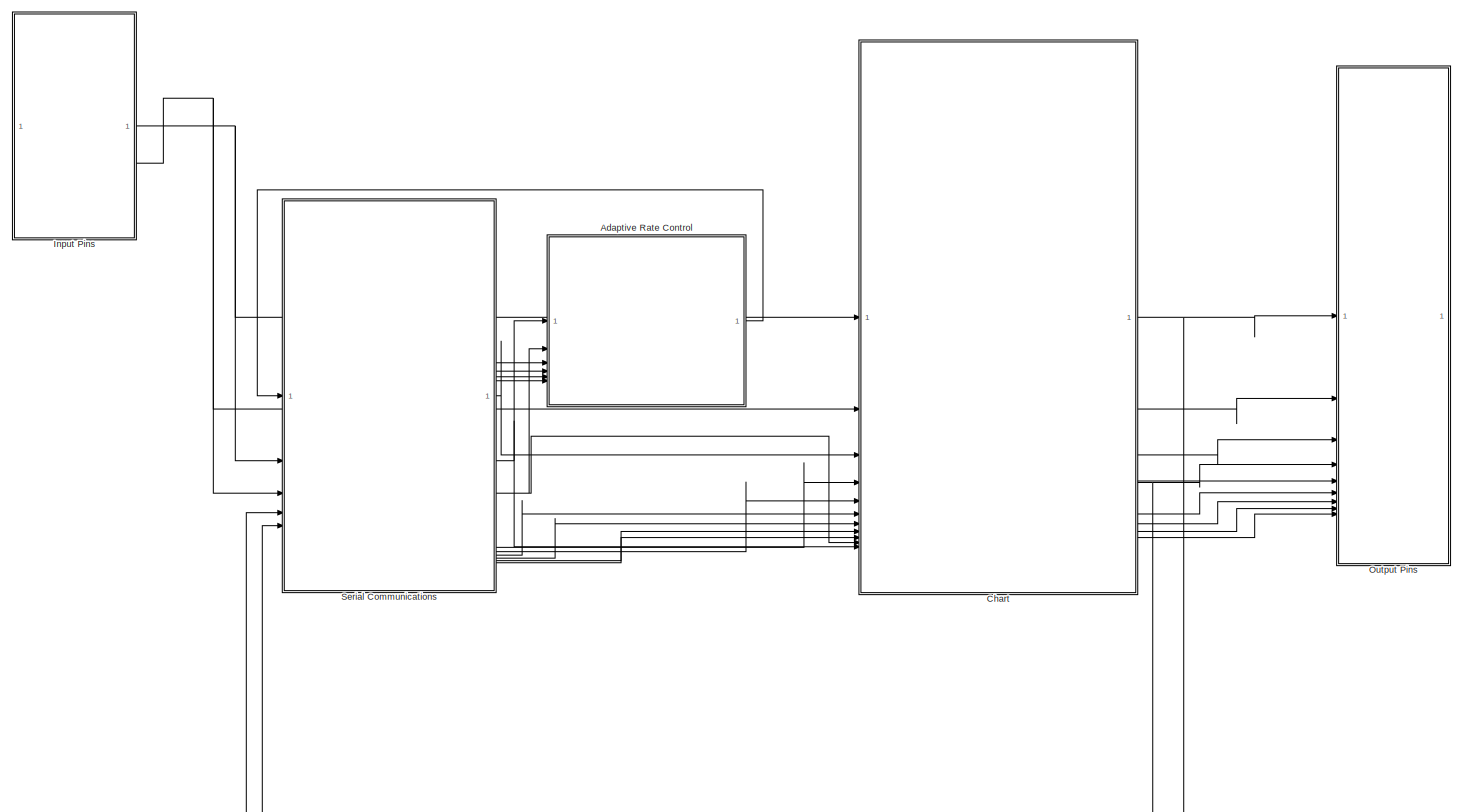
[diagram: root canvas - part 1/1, most of the canvas]
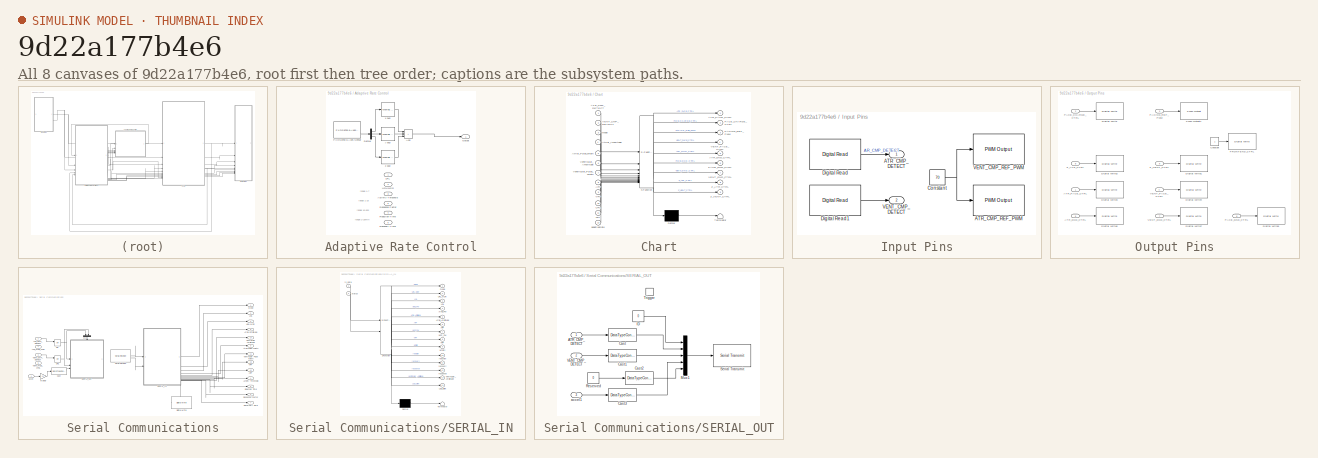
[diagram: thumbnail index - all 8 canvases of the model, root first then tree order]
MODEL slx_9d22a177b4e6
KIND model
CONFIG AbsTol = auto
CONFIG EnableMultiTasking = on
CONFIG FixedStep = 1e-3
CONFIG MaxStep = auto
CONFIG MinStep = auto
CONFIG RelTol = 1e-3
CONFIG SampleTimeConstraint = Unconstrained
CONFIG SolverName = FixedStepAuto
CONFIG StartTime = 0.0
CONFIG StopTime = 5
BLOCK [SubSystem] Adaptive Rate Control
BLOCK [Inport] Adaptive Rate Control/Activity Threshold
  Port = 3
BLOCK [Sum] Adaptive Rate Control/Add
  IconShape = rectangular
  Inputs = +++
BLOCK [Demux] Adaptive Rate Control/Demux
  Outputs = 3
BLOCK [Reference] Adaptive Rate Control/FXOS8700 6-Axes Sensor  REF=frdmk64flib/FXOS8700 6-Axes Sensor
  SourceBlock = frdmk64flib/FXOS8700 6-Axes Sensor
  SourceType = freedomk64f.fxos8700
BLOCK [Inport] Adaptive Rate Control/LRL
BLOCK [Outport] Adaptive Rate Control/Output
BLOCK [Inport] Adaptive Rate Control/Reaction Time
  Port = 4
BLOCK [Inport] Adaptive Rate Control/Recovery Time
  Port = 6
BLOCK [Inport] Adaptive Rate Control/Response Factor
  Port = 5
BLOCK [Inport] Adaptive Rate Control/URL//MSR
  Port = 2
BLOCK [Reference] Adaptive Rate Control/x avg  REF=dspstat3/Moving
Average
  SourceBlock = dspstat3/Moving\nAverage
  SourceType = dsp.simulink.MovingAverage
BLOCK [Reference] Adaptive Rate Control/y avg  REF=dspstat3/Moving
Average
  SourceBlock = dspstat3/Moving\nAverage
  SourceType = dsp.simulink.MovingAverage
BLOCK [Reference] Adaptive Rate Control/z avg  REF=dspstat3/Moving
Average
  SourceBlock = dspstat3/Moving\nAverage
  SourceType = dsp.simulink.MovingAverage
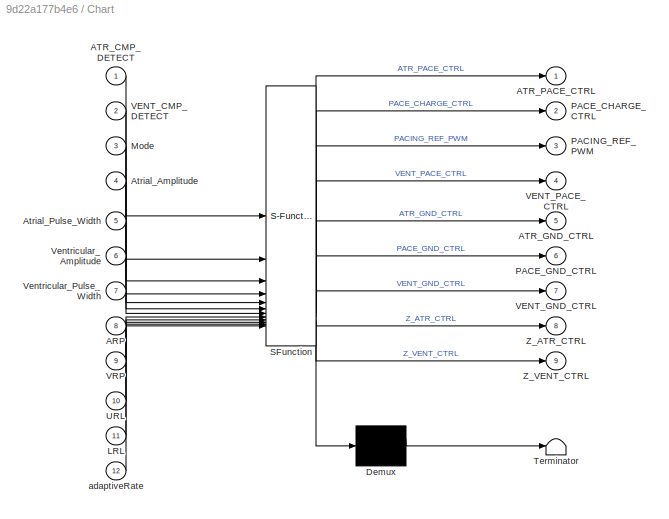
BLOCK [SubSystem] Chart
  ErrorFcn = Stateflow.Translate.translate
  PermitHierarchicalResolution = ExplicitOnly
  PortSchema = {"entries":[{"content":{"sides":[{"content":{"connectorIds":["In1","In2","In3","In11","In10","In12","In4","In5","In6","In7","In8","In9"]},"type":"ConnectorPlacement.EquallySpacedRectSide","uuid":"f4000909-515d-4a0d-a478-4ca4207159b3"},{"content":{"connectorIds":["Out1","Out2","Out3","Out4","Out5","Out6","Out7","Out8","Out9"],"side":"RIGHT"},"type":"ConnectorPlacement.EquallySpacedRectSide","uuid":...<+347ch>
  SFBlockType = Chart
  TreatAsAtomicUnit = on
BLOCK [Demux] Chart/ Demux 
  Outputs = 1
BLOCK [S-Function] Chart/ SFunction 
  EnableBusSupport = on
  FunctionName = sf_sfun
  PortCounts = [12 10]
  SFcnIsStateOwnerBlock = off
  SFunctionDeploymentMode = off
  Tag = Stateflow S-Function 3
BLOCK [Terminator] Chart/ Terminator 
BLOCK [Inport] Chart/ARP
  Port = 8
BLOCK [Inport] Chart/ATR_CMP_DETECT
BLOCK [Outport] Chart/ATR_GND_CTRL
  Port = 5
BLOCK [Outport] Chart/ATR_PACE_CTRL
BLOCK [Inport] Chart/Atrial_Amplitude
  Port = 4
BLOCK [Inport] Chart/Atrial_Pulse_Width
  Port = 5
BLOCK [Inport] Chart/LRL
  Port = 11
BLOCK [Inport] Chart/Mode
  Port = 3
BLOCK [Outport] Chart/PACE_CHARGE_CTRL
  Port = 2
BLOCK [Outport] Chart/PACE_GND_CTRL
  Port = 6
BLOCK [Outport] Chart/PACING_REF_PWM
  Port = 3
BLOCK [Inport] Chart/URL
  Port = 10
BLOCK [Inport] Chart/VENT_CMP_DETECT
  Port = 2
BLOCK [Outport] Chart/VENT_GND_CTRL
  Port = 7
BLOCK [Outport] Chart/VENT_PACE_CTRL
  Port = 4
BLOCK [Inport] Chart/VRP
  Port = 9
BLOCK [Inport] Chart/Ventricular_Amplitude
  Port = 6
BLOCK [Inport] Chart/Ventricular_Pulse_Width
  Port = 7
BLOCK [Outport] Chart/Z_ATR_CTRL
  Port = 8
BLOCK [Outport] Chart/Z_VENT_CTRL
  Port = 9
BLOCK [Inport] Chart/adaptiveRate
  Port = 12
BLOCK [SubSystem] Input Pins
  Description = Maps the digital and analog input pins of the K64F to named variables as defined in Pacemaker Shield Explained
BLOCK [Outport] Input Pins/ATR_CMP_DETECT
BLOCK [Reference] Input Pins/ATR_CMP_REF_PWM  REF=frdmk64flib/PWM Output
  SourceBlock = frdmk64flib/PWM Output
  SourceType = freedomk64f.PWMOutput
BLOCK [Constant] Input Pins/Constant
  Value = 70
BLOCK [Reference] Input Pins/Digital Read  REF=frdmk64flib/Digital Read
  SourceBlock = frdmk64flib/Digital Read
  SourceType = freedomk64f.DigitalRead
BLOCK [Reference] Input Pins/Digital Read1  REF=frdmk64flib/Digital Read
  SourceBlock = frdmk64flib/Digital Read
  SourceType = freedomk64f.DigitalRead
BLOCK [Outport] Input Pins/VENT_CMP_DETECT
  Port = 2
BLOCK [Reference] Input Pins/VENT_CMP_REF_PWM  REF=frdmk64flib/PWM Output
  SourceBlock = frdmk64flib/PWM Output
  SourceType = freedomk64f.PWMOutput
BLOCK [SubSystem] Output Pins
BLOCK [Inport] Output Pins/ATR_GND_CTRL
  Port = 5
BLOCK [Inport] Output Pins/ATR_PACE_CTRL
BLOCK [Constant] Output Pins/Constant
BLOCK [Reference] Output Pins/Digital Write  REF=frdmk64flib/Digital Write
  SourceBlock = frdmk64flib/Digital Write
  SourceType = freedomk64f.DigitalWrite
BLOCK [Reference] Output Pins/Digital Write1  REF=frdmk64flib/Digital Write
  SourceBlock = frdmk64flib/Digital Write
  SourceType = freedomk64f.DigitalWrite
BLOCK [Reference] Output Pins/Digital Write2  REF=frdmk64flib/Digital Write
  SourceBlock = frdmk64flib/Digital Write
  SourceType = freedomk64f.DigitalWrite
BLOCK [Reference] Output Pins/Digital Write3  REF=frdmk64flib/Digital Write
  SourceBlock = frdmk64flib/Digital Write
  SourceType = freedomk64f.DigitalWrite
BLOCK [Reference] Output Pins/Digital Write4  REF=frdmk64flib/Digital Write
  SourceBlock = frdmk64flib/Digital Write
  SourceType = freedomk64f.DigitalWrite
BLOCK [Reference] Output Pins/Digital Write5  REF=frdmk64flib/Digital Write
  SourceBlock = frdmk64flib/Digital Write
  SourceType = freedomk64f.DigitalWrite
BLOCK [Reference] Output Pins/Digital Write6  REF=frdmk64flib/Digital Write
  SourceBlock = frdmk64flib/Digital Write
  SourceType = freedomk64f.DigitalWrite
BLOCK [Reference] Output Pins/Digital Write7  REF=frdmk64flib/Digital Write
  SourceBlock = frdmk64flib/Digital Write
  SourceType = freedomk64f.DigitalWrite
BLOCK [Reference] Output Pins/FRONTEND_CTRL  REF=frdmk64flib/Digital Write
  SourceBlock = frdmk64flib/Digital Write
  SourceType = freedomk64f.DigitalWrite
BLOCK [Inport] Output Pins/PACE_CHARGE_CTRL
  Port = 2
BLOCK [Inport] Output Pins/PACE_GND_CTRL
  Port = 6
BLOCK [Inport] Output Pins/PACING_REF_PWM
  Port = 3
BLOCK [Reference] Output Pins/PWM Output1  REF=frdmk64flib/PWM Output
  SourceBlock = frdmk64flib/PWM Output
  SourceType = freedomk64f.PWMOutput
BLOCK [Inport] Output Pins/VENT_GND_CTRL
  Port = 7
BLOCK [Inport] Output Pins/VENT_PACE_CTRL
  Port = 4
BLOCK [Inport] Output Pins/Z_ATR_CTRL
  Port = 8
BLOCK [Inport] Output Pins/Z_VENT_CTRL
  Port = 9
BLOCK [SubSystem] Serial Communications
BLOCK [Outport] Serial Communications/ARP
  Port = 12
BLOCK [Inport] Serial Communications/ATR_CMP_DETECT
  Port = 2
BLOCK [Inport] Serial Communications/ATR_PACE_CTRL
  Port = 4
BLOCK [Outport] Serial Communications/Activity Threshold
  Port = 4
BLOCK [Outport] Serial Communications/Atrial Amplitude
  Port = 8
BLOCK [Outport] Serial Communications/Atrial Pulse Width
  Port = 9
BLOCK [DataTypeConversion] Serial Communications/Cast
  OutDataTypeStr = uint8
  RndMeth = Floor
  SaturateOnIntegerOverflow = off
BLOCK [Reference] Serial Communications/Digital Write  REF=frdmk64flib/Digital Write
  SourceBlock = frdmk64flib/Digital Write
  SourceType = freedomk64f.DigitalWrite
BLOCK [Outport] Serial Communications/LRL
  Port = 2
BLOCK [Outport] Serial Communications/Mode
BLOCK [Gain] Serial Communications/Multiply
  Gain = 10
BLOCK [Mux] Serial Communications/Mux
  DisplayOption = bar
  Inputs = 2
  NameLocation = left
BLOCK [Logic] Serial Communications/OR
  AllPortsSameDT = off
  IconShape = distinctive
  Operator = OR
  OutDataTypeStr = boolean
BLOCK [Logic] Serial Communications/OR1
  AllPortsSameDT = off
  IconShape = distinctive
  Operator = OR
  OutDataTypeStr = boolean
BLOCK [Outport] Serial Communications/Reaction Time
  Port = 5
BLOCK [Outport] Serial Communications/Recorvery Time
  Port = 7
BLOCK [Outport] Serial Communications/Response Factor
  Port = 6
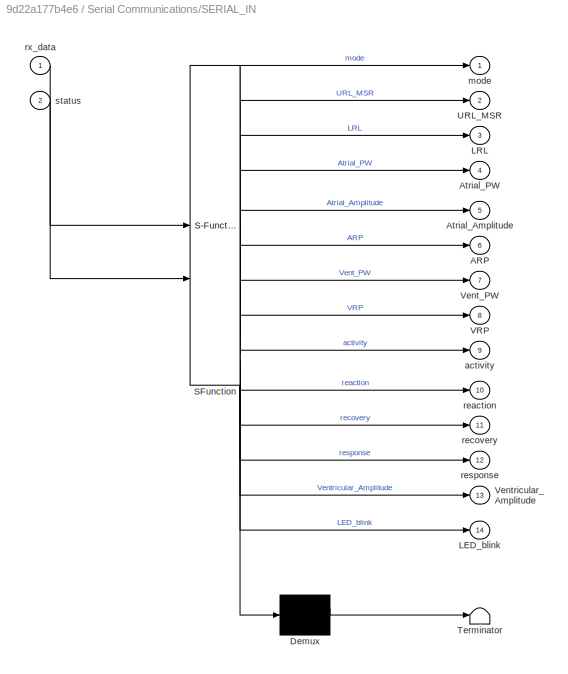
BLOCK [SubSystem] Serial Communications/SERIAL_IN
  ErrorFcn = Stateflow.Translate.translate
  PermitHierarchicalResolution = ExplicitOnly
  PortSchema = {"entries":[{"content":{"sides":[{"content":{"connectorIds":["In1","In2"]},"type":"ConnectorPlacement.EquallySpacedRectSide","uuid":"ebf63f13-cff1-4dfd-8253-a37fed9b5330"},{"content":{"connectorIds":["Out1","Out3","Out2","Out5","Out13","Out4","Out7","Out8","Out6","Out9","Out10","Out12","Out11"],"side":"RIGHT"},"type":"ConnectorPlacement.EquallySpacedRectSide","uuid":"8941ae37-13b3-448c-8772-44937e...<+467ch>
  SFBlockType = Chart
  TreatAsAtomicUnit = on
BLOCK [Demux] Serial Communications/SERIAL_IN/ Demux 
  Outputs = 1
BLOCK [S-Function] Serial Communications/SERIAL_IN/ SFunction 
  EnableBusSupport = on
  FunctionName = sf_sfun
  PortCounts = [2 15]
  SFcnIsStateOwnerBlock = off
  SFunctionDeploymentMode = off
  Tag = Stateflow S-Function 2
BLOCK [Terminator] Serial Communications/SERIAL_IN/ Terminator 
BLOCK [Outport] Serial Communications/SERIAL_IN/ARP
  Port = 6
BLOCK [Outport] Serial Communications/SERIAL_IN/Atrial_Amplitude
  Port = 5
BLOCK [Outport] Serial Communications/SERIAL_IN/Atrial_PW
  Port = 4
BLOCK [Outport] Serial Communications/SERIAL_IN/LED_blink
  Port = 14
BLOCK [Outport] Serial Communications/SERIAL_IN/LRL
  Port = 3
BLOCK [Outport] Serial Communications/SERIAL_IN/URL_MSR
  Port = 2
BLOCK [Outport] Serial Communications/SERIAL_IN/VRP
  Port = 8
BLOCK [Outport] Serial Communications/SERIAL_IN/Vent_PW
  Port = 7
BLOCK [Outport] Serial Communications/SERIAL_IN/Ventricular_Amplitude
  Port = 13
BLOCK [Outport] Serial Communications/SERIAL_IN/activity
  Port = 9
BLOCK [Outport] Serial Communications/SERIAL_IN/mode
BLOCK [Outport] Serial Communications/SERIAL_IN/reaction
  Port = 10
BLOCK [Outport] Serial Communications/SERIAL_IN/recovery
  Port = 11
BLOCK [Outport] Serial Communications/SERIAL_IN/response
  Port = 12
BLOCK [Inport] Serial Communications/SERIAL_IN/rx_data
BLOCK [Inport] Serial Communications/SERIAL_IN/status
  Port = 2
BLOCK [SubSystem] Serial Communications/SERIAL_OUT
BLOCK [Inport] Serial Communications/SERIAL_OUT/ATR_CMP_DETECT
BLOCK [DataTypeConversion] Serial Communications/SERIAL_OUT/Cast
  OutDataTypeStr = uint8
  RndMeth = Floor
  SaturateOnIntegerOverflow = off
BLOCK [DataTypeConversion] Serial Communications/SERIAL_OUT/Cast1
  OutDataTypeStr = uint8
  RndMeth = Floor
  SaturateOnIntegerOverflow = off
BLOCK [DataTypeConversion] Serial Communications/SERIAL_OUT/Cast2
  OutDataTypeStr = uint8
  RndMeth = Floor
  SaturateOnIntegerOverflow = off
BLOCK [DataTypeConversion] Serial Communications/SERIAL_OUT/Cast3
  OutDataTypeStr = uint8
  RndMeth = Floor
  SaturateOnIntegerOverflow = off
BLOCK [Constant] Serial Communications/SERIAL_OUT/ID
  OutDataTypeStr = uint8
  Value = 0
BLOCK [Mux] Serial Communications/SERIAL_OUT/Mux1
  DisplayOption = bar
  Inputs = 5
BLOCK [Constant] Serial Communications/SERIAL_OUT/Reserved
  Value = 0
BLOCK [Reference] Serial Communications/SERIAL_OUT/Serial Transmit  REF=frdmk64flib/Serial Transmit
  SourceBlock = frdmk64flib/Serial Transmit
  SourceType = freedomk64f.SCIWrite
BLOCK [TriggerPort] Serial Communications/SERIAL_OUT/Trigger
  PortDimensions = 1
  StatesWhenEnabling = held
  VariantControl = (inherit)
BLOCK [Inport] Serial Communications/SERIAL_OUT/VENT_CMP_DETECT
  Port = 2
BLOCK [Inport] Serial Communications/SERIAL_OUT/accel1
  Port = 3
BLOCK [Reference] Serial Communications/Serial Receive  REF=frdmk64flib/Serial Receive
  SourceBlock = frdmk64flib/Serial Receive
  SourceType = freedomk64f.SCIRead
BLOCK [Outport] Serial Communications/URL//MSR
  Port = 3
BLOCK [Inport] Serial Communications/VENT_CMP_DETECT
  Port = 3
BLOCK [Inport] Serial Communications/VENT_PACE_CTRL
  Port = 5
BLOCK [Outport] Serial Communications/VRP
  Port = 13
BLOCK [Outport] Serial Communications/Ventricular Amplitude
  Port = 10
BLOCK [Outport] Serial Communications/Ventricular Pulse Width
  Port = 11
BLOCK [Inport] Serial Communications/accel
ANNOTATION Adaptive Rate Control: range 1-16
ANNOTATION Adaptive Rate Control: range 1-7
ANNOTATION Adaptive Rate Control: range 10-50s
ANNOTATION Adaptive Rate Control: range 2-16min
LINE Adaptive Rate Control/Add:1 -> Adaptive Rate Control/Output:1
LINE Adaptive Rate Control/Demux:1 -> Adaptive Rate Control/x avg:1
LINE Adaptive Rate Control/Demux:2 -> Adaptive Rate Control/y avg:1
LINE Adaptive Rate Control/Demux:3 -> Adaptive Rate Control/z avg:1
LINE Adaptive Rate Control/FXOS8700 6-Axes Sensor:2 -> Adaptive Rate Control/Demux:1
LINE Adaptive Rate Control/x avg:1 -> Adaptive Rate Control/Add:1
LINE Adaptive Rate Control/y avg:1 -> Adaptive Rate Control/Add:2
LINE Adaptive Rate Control/z avg:1 -> Adaptive Rate Control/Add:3
LINE Adaptive Rate Control:1 -> Serial Communications:1
NET Chart:1 -> Output Pins:1, Serial Communications:4
LINE Chart:2 -> Output Pins:2
LINE Chart:3 -> Output Pins:3
NET Chart:4 -> Output Pins:4, Serial Communications:5
LINE Chart:5 -> Output Pins:5
LINE Chart:6 -> Output Pins:6
LINE Chart:7 -> Output Pins:7
LINE Chart:8 -> Output Pins:8
LINE Chart:9 -> Output Pins:9
NET Input Pins/Constant:1 -> Input Pins/ATR_CMP_REF_PWM:1, Input Pins/VENT_CMP_REF_PWM:1
LINE Input Pins/Digital Read1:1 -> Input Pins/VENT_CMP_DETECT:1
LINE Input Pins/Digital Read:1 -> Input Pins/ATR_CMP_DETECT:1
NET Input Pins:1 -> Chart:1, Serial Communications:2
NET Input Pins:2 -> Chart:2, Serial Communications:3
LINE Output Pins/ATR_GND_CTRL:1 -> Output Pins/Digital Write6:1
LINE Output Pins/ATR_PACE_CTRL:1 -> Output Pins/Digital Write3:1
LINE Output Pins/Constant:1 -> Output Pins/FRONTEND_CTRL:1
LINE Output Pins/PACE_CHARGE_CTRL:1 -> Output Pins/Digital Write:1
LINE Output Pins/PACE_GND_CTRL:1 -> Output Pins/Digital Write5:1
LINE Output Pins/PACING_REF_PWM:1 -> Output Pins/PWM Output1:1
LINE Output Pins/VENT_GND_CTRL:1 -> Output Pins/Digital Write7:1
LINE Output Pins/VENT_PACE_CTRL:1 -> Output Pins/Digital Write4:1
LINE Output Pins/Z_ATR_CTRL:1 -> Output Pins/Digital Write2:1
LINE Output Pins/Z_VENT_CTRL:1 -> Output Pins/Digital Write1:1
LINE Serial Communications/ATR_CMP_DETECT:1 -> Serial Communications/OR:1
LINE Serial Communications/Cast:1 -> Serial Communications/SERIAL_OUT:3
LINE Serial Communications/Multiply:1 -> Serial Communications/Cast:1
LINE Serial Communications/Mux:1 -> Serial Communications/SERIAL_OUT:trigger
NET Serial Communications/OR1:1 -> Serial Communications/Mux:2, Serial Communications/SERIAL_OUT:2
NET Serial Communications/OR:1 -> Serial Communications/Mux:1, Serial Communications/SERIAL_OUT:1
LINE Serial Communications/SERIAL_IN:1 -> Serial Communications/Mode:1
LINE Serial Communications/SERIAL_IN:10 -> Serial Communications/Reaction Time:1
LINE Serial Communications/SERIAL_IN:11 -> Serial Communications/Recorvery Time:1
LINE Serial Communications/SERIAL_IN:12 -> Serial Communications/Response Factor:1
LINE Serial Communications/SERIAL_IN:13 -> Serial Communications/Ventricular Amplitude:1
LINE Serial Communications/SERIAL_IN:14 -> Serial Communications/Digital Write:1
LINE Serial Communications/SERIAL_IN:2 -> Serial Communications/URL//MSR:1
LINE Serial Communications/SERIAL_IN:3 -> Serial Communications/LRL:1
LINE Serial Communications/SERIAL_IN:4 -> Serial Communications/Atrial Pulse Width:1
LINE Serial Communications/SERIAL_IN:5 -> Serial Communications/Atrial Amplitude:1
LINE Serial Communications/SERIAL_IN:6 -> Serial Communications/ARP:1
LINE Serial Communications/SERIAL_IN:7 -> Serial Communications/Ventricular Pulse Width:1
LINE Serial Communications/SERIAL_IN:8 -> Serial Communications/VRP:1
LINE Serial Communications/SERIAL_IN:9 -> Serial Communications/Activity Threshold:1
LINE Serial Communications/SERIAL_OUT/ATR_CMP_DETECT:1 -> Serial Communications/SERIAL_OUT/Cast:1
LINE Serial Communications/SERIAL_OUT/Cast1:1 -> Serial Communications/SERIAL_OUT/Mux1:3
LINE Serial Communications/SERIAL_OUT/Cast2:1 -> Serial Communications/SERIAL_OUT/Mux1:5
LINE Serial Communications/SERIAL_OUT/Cast3:1 -> Serial Communications/SERIAL_OUT/Mux1:4
LINE Serial Communications/SERIAL_OUT/Cast:1 -> Serial Communications/SERIAL_OUT/Mux1:2
LINE Serial Communications/SERIAL_OUT/ID:1 -> Serial Communications/SERIAL_OUT/Mux1:1
LINE Serial Communications/SERIAL_OUT/Mux1:1 -> Serial Communications/SERIAL_OUT/Serial Transmit:1
LINE Serial Communications/SERIAL_OUT/Reserved:1 -> Serial Communications/SERIAL_OUT/Cast2:1
LINE Serial Communications/SERIAL_OUT/VENT_CMP_DETECT:1 -> Serial Communications/SERIAL_OUT/Cast1:1
LINE Serial Communications/SERIAL_OUT/accel1:1 -> Serial Communications/SERIAL_OUT/Cast3:1
LINE Serial Communications/Serial Receive:1 -> Serial Communications/SERIAL_IN:1
LINE Serial Communications/Serial Receive:2 -> Serial Communications/SERIAL_IN:2
LINE Serial Communications/VENT_CMP_DETECT:1 -> Serial Communications/OR1:1
LINE Serial Communications/accel:1 -> Serial Communications/Multiply:1
LINE Serial Communications:1 -> Chart:3
LINE Serial Communications:10 -> Chart:6
LINE Serial Communications:11 -> Chart:7
LINE Serial Communications:12 -> Chart:8
LINE Serial Communications:13 -> Chart:9
NET Serial Communications:2 -> Adaptive Rate Control:1, Chart:11
NET Serial Communications:3 -> Adaptive Rate Control:2, Chart:10
LINE Serial Communications:4 -> Adaptive Rate Control:3
LINE Serial Communications:5 -> Adaptive Rate Control:4
LINE Serial Communications:6 -> Adaptive Rate Control:5
LINE Serial Communications:7 -> Adaptive Rate Control:6
LINE Serial Communications:8 -> Chart:4
LINE Serial Communications:9 -> Chart:5
note: NET lines group one-source signal fan-out (src -> all destinations, sorted); 1:1 wires keep LINE
CHART Serial Communications/SERIAL_IN states=3 transitions=4
  STATE_LABEL 'success\nentry:\nLED_blink = 1;\nmode = rx_data(1);\nLRL = rx_data(2);\nURL_MSR = rx_data(3);\nAtrial_Amplitude = double(rx_data(4)/10);\nVentricular_Amplitude = double(rx_data(5)/10);\nAtrial_PW = rx_data(6);\nVent_PW = rx_data(7);\nVRP = uint32(rx_data(8)*10);\nARP = uint32(rx_data(9)*10);\nactivity = rx_data(10);\nreaction = rx_data(11);\nresponse = rx_data(12);\nrecovery = rx_data(13);\n'
  STATE_LABEL 'Initial\nentry:\nmode = 255;\n'
  STATE_LABEL 'standby\nentry:\nLED_blink = 0;'
CHART Chart states=41 transitions=61
  STATE_LABEL 'VOO\n'
  STATE_LABEL 'setup\nentry:\nventDutyCycle = (Ventricular_Amplitude/5)*100\nventWait = single(Rate_ms - Ventricular_Pulse_Width)\n'
  STATE_LABEL 'charge_discharge\nentry:\n%discharge c21\nPACE_GND_CTRL = 0\nVENT_PACE_CTRL = 0\nZ_ATR_CTRL = 0\nZ_VENT_CTRL = 0\nATR_PACE_CTRL = 0\nATR_GND_CTRL = 0\nVENT_GND_CTRL = 1\n%charge c22\nVENT_PACE_CTRL = 0\nATR_PACE_CTRL = 0\nPACING_REF_PWM = double(ventDutyCycle)\nPACE_CHARGE_CTRL = 1\n'
  STATE_LABEL 'pace\nPACE_CHARGE_CTRL = 0\nPACE_GND_CTRL = 1\nATR_PACE_CTRL = 0\nATR_GND_CTRL = 0\nZ_ATR_CTRL = 0\nZ_VENT_CTRL = 0\nVENT_GND_CTRL = 0\nVENT_PACE_CTRL = 1\n'
  STATE_LABEL '[et(msec) >= ventWait]'
  STATE_LABEL '[et(msec) >= Ventricular_Pulse_Width]'
  STATE_LABEL 'setup\nentry:\nventDutyCycle = (Ventricular_Amplitude/5)*100\nventWait = single(Rate_ms - Ventricular_Pulse_Width)\n'
  STATE_LABEL 'charge_discharge\nentry:\n%discharge c21\nPACE_GND_CTRL = 0\nVENT_PACE_CTRL = 0\nZ_ATR_CTRL = 0\nZ_VENT_CTRL = 0\nATR_PACE_CTRL = 0\nATR_GND_CTRL = 0\nVENT_GND_CTRL = 1\n%charge c22\nVENT_PACE_CTRL = 0\nATR_PACE_CTRL = 0\nPACING_REF_PWM = double(ventDutyCycle)\nPACE_CHARGE_CTRL = 1\n'
  STATE_LABEL 'pace\nPACE_CHARGE_CTRL = 0\nPACE_GND_CTRL = 1\nATR_PACE_CTRL = 0\nATR_GND_CTRL = 0\nZ_ATR_CTRL = 0\nZ_VENT_CTRL = 0\nVENT_GND_CTRL = 0\nVENT_PACE_CTRL = 1\n'
  STATE_LABEL 'AAI\n'
  STATE_LABEL 'setup\nentry:\natrialDutyCycle = (Atrial_Amplitude/5)*100\natrWait = single(Rate_ms - Atrial_Pulse_Width)\ntimeToPace = atrWait\n'
  STATE_LABEL 'refractory_period'
  STATE_LABEL 'charge_discharge_EN\nentry:\n%discharge c21\nPACE_GND_CTRL = 0\nATR_PACE_CTRL = 0\nZ_ATR_CTRL = 0\nZ_VENT_CTRL = 0\nVENT_PACE_CTRL = 0\nVENT_GND_CTRL = 0\nATR_GND_CTRL = 1\n%charge c22\nATR_PACE_CTRL = 0\nVENT_PACE_CTRL = 0\nPACING_REF_PWM = atrialDutyCycle\nPACE_CHARGE_CTRL = 1\n'
  STATE_LABEL 'sense_wait\nexit:\ntimeToPace = timeToPace - et(msec)'
  STATE_LABEL 'pace\nentry:\nPACE_CHARGE_CTRL = 0\nPACE_GND_CTRL = 1\nVENT_PACE_CTRL = 0\nVENT_GND_CTRL = 0\nZ_ATR_CTRL = 0\nZ_VENT_CTRL = 0\nATR_GND_CTRL = 0\nATR_PACE_CTRL = 1\n%reset timer\ntimeToPace = atrWait\n'
  STATE_LABEL '[et(msec) >= ARP]'
  STATE_LABEL '[ATR_CMP_DETECT == 1]'
  STATE_LABEL '[et(msec) >= timeToPace]'
  STATE_LABEL '[et(msec) >= Atrial_Pulse_Width]'
  STATE_LABEL 'setup\nentry:\natrialDutyCycle = (Atrial_Amplitude/5)*100\natrWait = single(Rate_ms - Atrial_Pulse_Width)\ntimeToPace = atrWait\n'
  STATE_LABEL 'refractory_period'
  STATE_LABEL 'charge_discharge_EN\nentry:\n%discharge c21\nPACE_GND_CTRL = 0\nATR_PACE_CTRL = 0\nZ_ATR_CTRL = 0\nZ_VENT_CTRL = 0\nVENT_PACE_CTRL = 0\nVENT_GND_CTRL = 0\nATR_GND_CTRL = 1\n%charge c22\nATR_PACE_CTRL = 0\nVENT_PACE_CTRL = 0\nPACING_REF_PWM = atrialDutyCycle\nPACE_CHARGE_CTRL = 1\n'
  STATE_LABEL 'sense_wait\nexit:\ntimeToPace = timeToPace - et(msec)'
  STATE_LABEL 'pace\nentry:\nPACE_CHARGE_CTRL = 0\nPACE_GND_CTRL = 1\nVENT_PACE_CTRL = 0\nVENT_GND_CTRL = 0\nZ_ATR_CTRL = 0\nZ_VENT_CTRL = 0\nATR_GND_CTRL = 0\nATR_PACE_CTRL = 1\n%reset timer\ntimeToPace = atrWait\n'
  STATE_LABEL 'AOO\n'
  STATE_LABEL 'setup\nentry:\natrialDutyCycle = (Atrial_Amplitude/5)*100\natrWait = single(Rate_ms - Atrial_Pulse_Width)\n'
  STATE_LABEL 'charge_discharge\nentry:\n%discharge c21\nPACE_GND_CTRL = 0\nATR_PACE_CTRL = 0\nZ_ATR_CTRL = 0\nZ_VENT_CTRL = 0\nVENT_PACE_CTRL = 0\nVENT_GND_CTRL = 0\nATR_GND_CTRL = 1\n%charge c22\nATR_PACE_CTRL = 0\nVENT_PACE_CTRL = 0\nPACING_REF_PWM = atrialDutyCycle\nPACE_CHARGE_CTRL = 1\n'
  STATE_LABEL 'pace\nPACE_CHARGE_CTRL = 0\nPACE_GND_CTRL = 1\nVENT_PACE_CTRL = 0\nVENT_GND_CTRL = 0\nZ_ATR_CTRL = 0\nZ_VENT_CTRL = 0\nATR_GND_CTRL = 0\nATR_PACE_CTRL = 1\n'
  STATE_LABEL '[et(msec) >= atrWait]'
  STATE_LABEL '[et(msec) >= Atrial_Pulse_Width]'
  STATE_LABEL 'setup\nentry:\natrialDutyCycle = (Atrial_Amplitude/5)*100\natrWait = single(Rate_ms - Atrial_Pulse_Width)\n'
  STATE_LABEL 'charge_discharge\nentry:\n%discharge c21\nPACE_GND_CTRL = 0\nATR_PACE_CTRL = 0\nZ_ATR_CTRL = 0\nZ_VENT_CTRL = 0\nVENT_PACE_CTRL = 0\nVENT_GND_CTRL = 0\nATR_GND_CTRL = 1\n%charge c22\nATR_PACE_CTRL = 0\nVENT_PACE_CTRL = 0\nPACING_REF_PWM = atrialDutyCycle\nPACE_CHARGE_CTRL = 1\n'
  STATE_LABEL 'pace\nPACE_CHARGE_CTRL = 0\nPACE_GND_CTRL = 1\nVENT_PACE_CTRL = 0\nVENT_GND_CTRL = 0\nZ_ATR_CTRL = 0\nZ_VENT_CTRL = 0\nATR_GND_CTRL = 0\nATR_PACE_CTRL = 1\n'
  STATE_LABEL 'VVI\n'
  STATE_LABEL 'setup\nentry:\nventDutyCycle = (Ventricular_Amplitude/5)*100\nventWait = single(Rate_ms - Ventricular_Pulse_Width)\n'
  STATE_LABEL 'charge_discharge_EN\nentry:\n%discharge c21\nPACE_GND_CTRL = 0\nVENT_PACE_CTRL = 0\nZ_VENT_CTRL = 0\nZ_ATR_CTRL = 0\nATR_PACE_CTRL = 0\nATR_GND_CTRL = 0\nVENT_GND_CTRL = 1\n%charge c22\nVENT_PACE_CTRL = 0\nATR_PACE_CTRL = 0\nPACING_REF_PWM = double(ventDutyCycle)\nPACE_CHARGE_CTRL = 1\n'
  STATE_LABEL 'refractory\n%do nothing\n%after a pace'
  STATE_LABEL 'sense_wait\n%check for new\n%nat pace'
  STATE_LABEL 'pace\nentry:\nPACE_CHARGE_CTRL = 0\nPACE_GND_CTRL = 1\nATR_PACE_CTRL = 0\nATR_GND_CTRL = 0\nZ_VENT_CTRL = 0\nZ_ATR_CTRL = 0\nVENT_GND_CTRL = 0\nVENT_PACE_CTRL = 1\n'
  STATE_LABEL '[VENT_CMP_DETECT == 1]'
CHART  states=0 transitions=0
CHART  states=0 transitions=0
